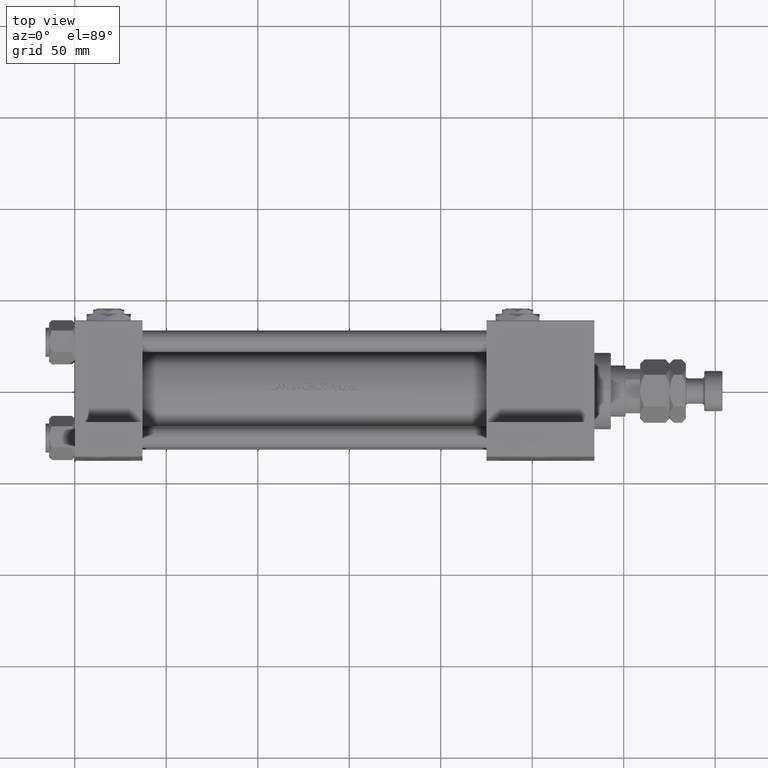
[diagram: clean part render]
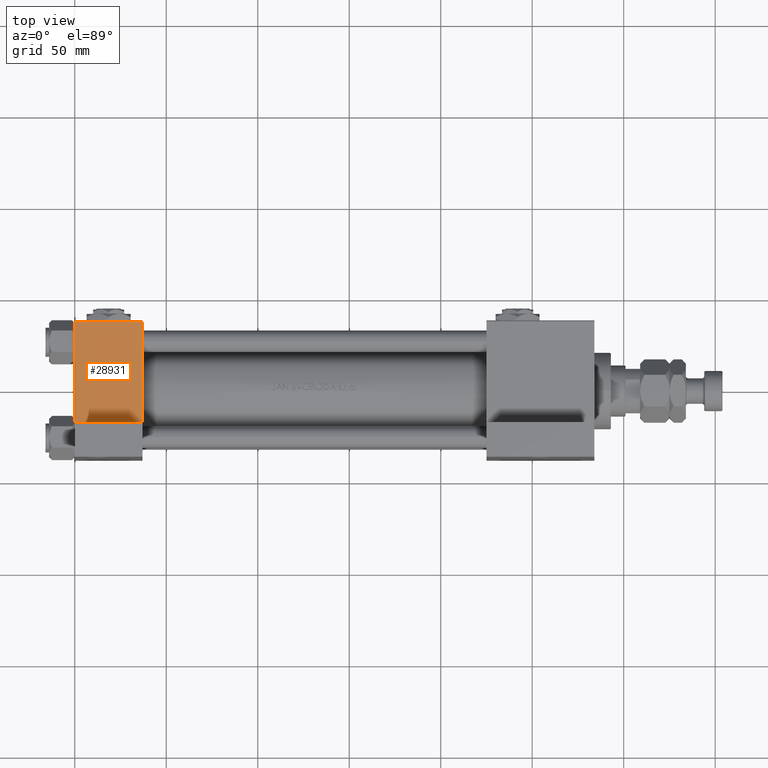
[diagram: same view with one face highlighted and labeled with its STEP entity id]
A machine part, top view. The second image highlights one B-rep face of the part: STEP entity #28931.
In plain terms, the highlighted planar face has unit normal (0, 0, -1).
Its self-contained STEP definition (entity closure, byte-faithful):
#134 = LINE ( 'NONE', #23448, #18754 ) ;
#447 = DIRECTION ( 'NONE',  ( -1.000000000000000000, 0.000000000000000000, 0.000000000000000000 ) ) ;
#1612 = EDGE_CURVE ( 'NONE', #2478, #7399, #6850, .T. ) ;
#1642 = LINE ( 'NONE', #21339, #24454 ) ;
#2478 = VERTEX_POINT ( 'NONE', #8739 ) ;
#5773 = EDGE_CURVE ( 'NONE', #25447, #2478, #19895, .T. ) ;
#6513 = CARTESIAN_POINT ( 'NONE',  ( 37.00000000000000000, -37.50000000000000000, -18.50000000000000355 ) ) ;
#6667 = FACE_OUTER_BOUND ( 'NONE', #43266, .T. ) ;
#6850 = LINE ( 'NONE', #22204, #32961 ) ;
#7258 = VERTEX_POINT ( 'NONE', #6513 ) ;
#7399 = VERTEX_POINT ( 'NONE', #20285 ) ;
#8073 = DIRECTION ( 'NONE',  ( 0.000000000000000000, 9.251858538542971581E-17, -1.000000000000000000 ) ) ;
#8739 = CARTESIAN_POINT ( 'NONE',  ( 0.000000000000000000, -37.50000000000000711, 36.99999999999999289 ) ) ;
#9560 = ORIENTED_EDGE ( 'NONE', *, *, #5773, .T. ) ;
#10438 = DIRECTION ( 'NONE',  ( 0.000000000000000000, 9.251858538542971581E-17, -1.000000000000000000 ) ) ;
#10512 = CARTESIAN_POINT ( 'NONE',  ( 37.00000000000000000, -37.50000000000000711, 37.49999999999999289 ) ) ;
#10823 = AXIS2_PLACEMENT_3D ( 'NONE', #10512, #17933, #44864 ) ;
#17933 = DIRECTION ( 'NONE',  ( -0.000000000000000000, 1.000000000000000000, 9.251858538542971581E-17 ) ) ;
#18754 = VECTOR ( 'NONE', #8073, 1000.000000000000000 ) ;
#18885 = EDGE_CURVE ( 'NONE', #25447, #7258, #134, .T. ) ;
#19895 = LINE ( 'NONE', #35538, #24969 ) ;
#20285 = CARTESIAN_POINT ( 'NONE',  ( -7.145701223179004046E-16, -37.50000000000000711, -18.50000000000000355 ) ) ;
#21339 = CARTESIAN_POINT ( 'NONE',  ( -7.145701223179000102E-16, -37.50000000000001421, -18.49999999999999645 ) ) ;
#22014 = EDGE_CURVE ( 'NONE', #7258, #7399, #1642, .T. ) ;
#22204 = CARTESIAN_POINT ( 'NONE',  ( 0.000000000000000000, -37.50000000000000711, 37.49999999999999289 ) ) ;
#23448 = CARTESIAN_POINT ( 'NONE',  ( 37.00000000000000000, -37.50000000000000711, 37.49999999999999289 ) ) ;
#24431 = DIRECTION ( 'NONE',  ( -1.000000000000000000, 0.000000000000000000, 0.000000000000000000 ) ) ;
#24454 = VECTOR ( 'NONE', #24431, 1000.000000000000000 ) ;
#24969 = VECTOR ( 'NONE', #447, 1000.000000000000000 ) ;
#25447 = VERTEX_POINT ( 'NONE', #42443 ) ;
#28931 = ADVANCED_FACE ( 'NONE', ( #6667 ), #45634, .F. ) ;
#30922 = ORIENTED_EDGE ( 'NONE', *, *, #18885, .F. ) ;
#32961 = VECTOR ( 'NONE', #10438, 1000.000000000000000 ) ;
#35538 = CARTESIAN_POINT ( 'NONE',  ( 37.00000000000000000, -37.50000000000000711, 36.99999999999999289 ) ) ;
#36858 = ORIENTED_EDGE ( 'NONE', *, *, #1612, .T. ) ;
#37573 = ORIENTED_EDGE ( 'NONE', *, *, #22014, .F. ) ;
#42443 = CARTESIAN_POINT ( 'NONE',  ( 37.00000000000000000, -37.50000000000000711, 36.99999999999999289 ) ) ;
#43266 = EDGE_LOOP ( 'NONE', ( #37573, #30922, #9560, #36858 ) ) ;
#44864 = DIRECTION ( 'NONE',  ( 0.000000000000000000, -9.251858538542971581E-17, 1.000000000000000000 ) ) ;
#45634 = PLANE ( 'NONE',  #10823 ) ;